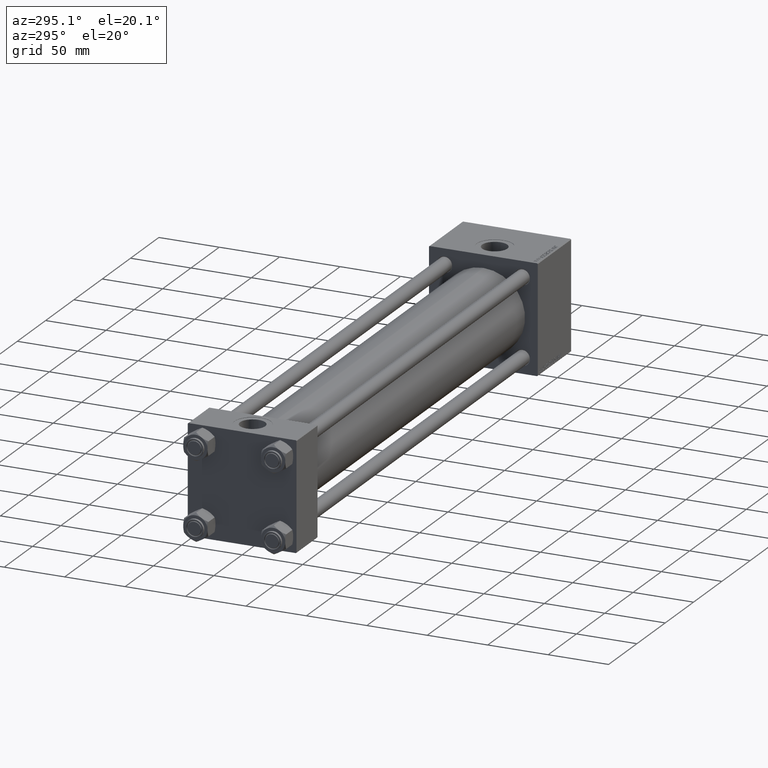
[diagram: clean part render]
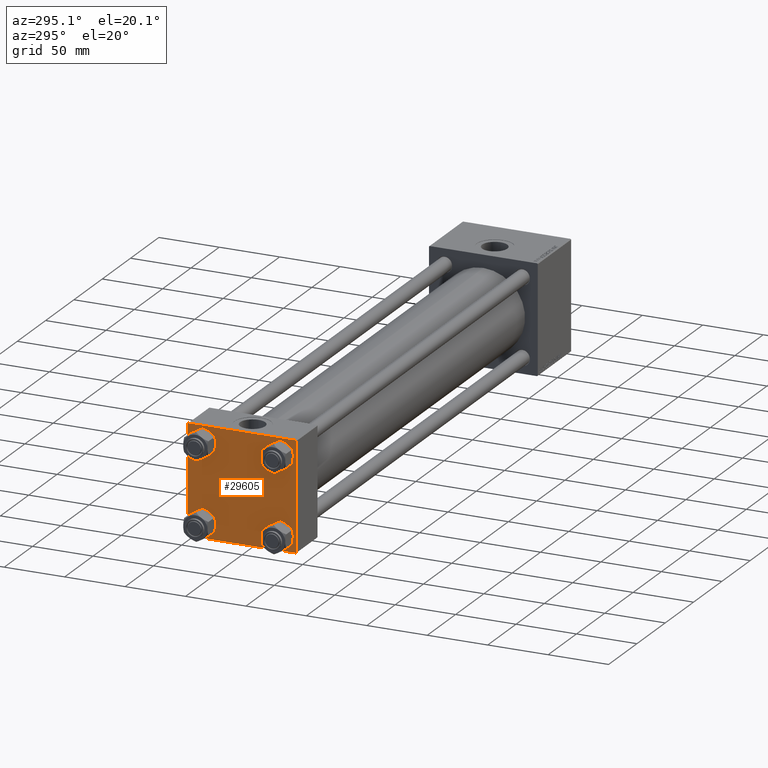
[diagram: same view with one face highlighted and labeled with its STEP entity id]
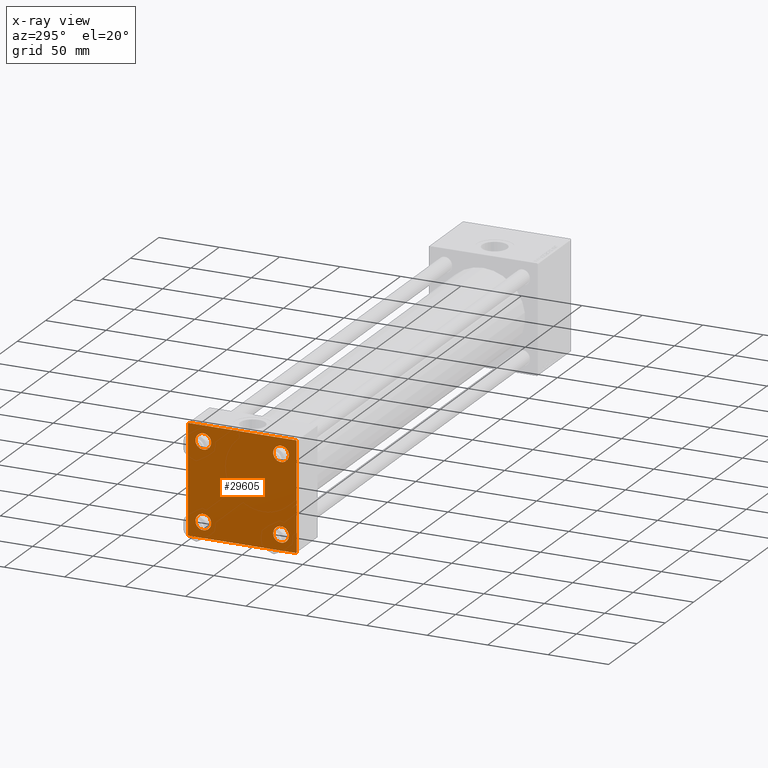
[diagram: x-ray of the same camera — body ghosted, the highlighted face saturated]
A machine part, auxiliary view. The second image highlights one B-rep face of the part: STEP entity #29605.
The next image is the same camera in x-ray: the body ghosted, the highlighted face saturated — about 0% of this face is hidden behind the body in this view.
In plain terms, the highlighted planar face has unit normal (-1, 0, 0).
Its self-contained STEP definition (entity closure, byte-faithful):
#383 = CARTESIAN_POINT ( 'NONE',  ( 0.000000000000000000, 44.99999999999998579, -44.49999999999995737 ) ) ;
#1426 = VECTOR ( 'NONE', #19459, 1000.000000000000114 ) ;
#1453 = ORIENTED_EDGE ( 'NONE', *, *, #9742, .T. ) ;
#1647 = CARTESIAN_POINT ( 'NONE',  ( 0.000000000000000000, 32.14999999999999147, 32.15000000000000568 ) ) ;
#2233 = DIRECTION ( 'NONE',  ( 1.000000000000000000, -0.000000000000000000, 0.000000000000000000 ) ) ;
#2516 = VECTOR ( 'NONE', #11775, 1000.000000000000000 ) ;
#2547 = ORIENTED_EDGE ( 'NONE', *, *, #25420, .F. ) ;
#2628 = CARTESIAN_POINT ( 'NONE',  ( 0.000000000000000000, 32.14999999999999147, -32.15000000000000568 ) ) ;
#3017 = CARTESIAN_POINT ( 'NONE',  ( 0.000000000000000000, 44.99999999999998579, 45.00000000000001421 ) ) ;
#3289 = CIRCLE ( 'NONE', #14646, 6.500000000000019540 ) ;
#3768 = CIRCLE ( 'NONE', #23271, 6.499999999999977796 ) ;
#3987 = LINE ( 'NONE', #7824, #46936 ) ;
#4123 = DIRECTION ( 'NONE',  ( 0.000000000000000000, 0.000000000000000000, 1.000000000000000000 ) ) ;
#4139 = DIRECTION ( 'NONE',  ( 1.000000000000000000, -0.000000000000000000, 0.000000000000000000 ) ) ;
#5094 = ORIENTED_EDGE ( 'NONE', *, *, #47189, .T. ) ;
#5944 = CARTESIAN_POINT ( 'NONE',  ( 0.000000000000000000, 32.14999999999999147, -38.64999999999998437 ) ) ;
#6269 = CARTESIAN_POINT ( 'NONE',  ( 0.000000000000000000, 44.99999999999998579, 44.50000000000001421 ) ) ;
#6338 = CARTESIAN_POINT ( 'NONE',  ( 0.000000000000000000, -44.49999999999995737, -45.00000000000000000 ) ) ;
#6569 = CARTESIAN_POINT ( 'NONE',  ( 0.000000000000000000, 32.14999999999999147, 38.64999999999999147 ) ) ;
#7234 = EDGE_CURVE ( 'NONE', #15630, #17854, #26183, .T. ) ;
#7758 = CIRCLE ( 'NONE', #18311, 6.499999999999977796 ) ;
#7824 = CARTESIAN_POINT ( 'NONE',  ( 0.000000000000000000, -45.00000000000000711, 45.00000000000000000 ) ) ;
#7961 = EDGE_CURVE ( 'NONE', #18702, #36331, #3289, .T. ) ;
#7983 = LINE ( 'NONE', #19669, #25886 ) ;
#8150 = LINE ( 'NONE', #27726, #26615 ) ;
#8277 = DIRECTION ( 'NONE',  ( 1.000000000000000000, -0.000000000000000000, 0.000000000000000000 ) ) ;
#9023 = CARTESIAN_POINT ( 'NONE',  ( 0.000000000000000000, 32.14999999999999147, -32.15000000000000568 ) ) ;
#9742 = EDGE_CURVE ( 'NONE', #36013, #31574, #46652, .T. ) ;
#10010 = DIRECTION ( 'NONE',  ( 1.000000000000000000, -0.000000000000000000, 0.000000000000000000 ) ) ;
#10657 = FACE_BOUND ( 'NONE', #46618, .T. ) ;
#10776 = AXIS2_PLACEMENT_3D ( 'NONE', #25569, #41355, #30141 ) ;
#10836 = ORIENTED_EDGE ( 'NONE', *, *, #29388, .T. ) ;
#11241 = EDGE_CURVE ( 'NONE', #42488, #47500, #40766, .T. ) ;
#11293 = CARTESIAN_POINT ( 'NONE',  ( 0.000000000000000000, -32.14999999999997726, 32.15000000000001279 ) ) ;
#11404 = DIRECTION ( 'NONE',  ( -1.000000000000000000, 0.000000000000000000, -0.000000000000000000 ) ) ;
#11775 = DIRECTION ( 'NONE',  ( 0.000000000000000000, -1.000000000000000000, -1.541976423090495633E-16 ) ) ;
#12609 = DIRECTION ( 'NONE',  ( 0.000000000000000000, 0.000000000000000000, 1.000000000000000000 ) ) ;
#12781 = EDGE_CURVE ( 'NONE', #25835, #44860, #22126, .T. ) ;
#13597 = DIRECTION ( 'NONE',  ( 1.000000000000000000, -0.000000000000000000, 0.000000000000000000 ) ) ;
#14646 = AXIS2_PLACEMENT_3D ( 'NONE', #11293, #4139, #15352 ) ;
#14687 = VERTEX_POINT ( 'NONE', #383 ) ;
#15286 = AXIS2_PLACEMENT_3D ( 'NONE', #49104, #11404, #38379 ) ;
#15352 = DIRECTION ( 'NONE',  ( 0.000000000000000000, 0.000000000000000000, 1.000000000000000000 ) ) ;
#15630 = VERTEX_POINT ( 'NONE', #23557 ) ;
#17257 = AXIS2_PLACEMENT_3D ( 'NONE', #1647, #13597, #12609 ) ;
#17537 = VERTEX_POINT ( 'NONE', #40331 ) ;
#17854 = VERTEX_POINT ( 'NONE', #50200 ) ;
#18155 = CARTESIAN_POINT ( 'NONE',  ( 0.000000000000000000, -45.00000000000000000, -44.49999999999995737 ) ) ;
#18311 = AXIS2_PLACEMENT_3D ( 'NONE', #31098, #38985, #4123 ) ;
#18702 = VERTEX_POINT ( 'NONE', #42802 ) ;
#19459 = DIRECTION ( 'NONE',  ( 0.000000000000000000, -0.7071067811865474617, 0.7071067811865474617 ) ) ;
#19574 = CARTESIAN_POINT ( 'NONE',  ( 0.000000000000000000, 44.74999999999999289, 44.74999999999999289 ) ) ;
#19669 = CARTESIAN_POINT ( 'NONE',  ( 0.000000000000000000, 44.99999999999998579, 45.00000000000001421 ) ) ;
#20101 = EDGE_LOOP ( 'NONE', ( #46577, #29387 ) ) ;
#20114 = EDGE_LOOP ( 'NONE', ( #44231, #10836, #1453, #45766, #2547, #5094, #31500, #20762 ) ) ;
#20203 = CARTESIAN_POINT ( 'NONE',  ( 0.000000000000000000, -44.74999999999998579, -44.74999999999998579 ) ) ;
#20424 = DIRECTION ( 'NONE',  ( 0.000000000000000000, 0.000000000000000000, -1.000000000000000000 ) ) ;
#20631 = ORIENTED_EDGE ( 'NONE', *, *, #31016, .T. ) ;
#20762 = ORIENTED_EDGE ( 'NONE', *, *, #28523, .T. ) ;
#21283 = DIRECTION ( 'NONE',  ( -0.000000000000000000, 0.7071067811865425767, 0.7071067811865524577 ) ) ;
#22126 = CIRCLE ( 'NONE', #10776, 6.499999999999977796 ) ;
#22716 = DIRECTION ( 'NONE',  ( 0.000000000000000000, 0.000000000000000000, 1.000000000000000000 ) ) ;
#22848 = EDGE_LOOP ( 'NONE', ( #43030, #26849 ) ) ;
#22940 = VECTOR ( 'NONE', #21283, 1000.000000000000114 ) ;
#23078 = EDGE_CURVE ( 'NONE', #45549, #28693, #7758, .T. ) ;
#23271 = AXIS2_PLACEMENT_3D ( 'NONE', #2628, #10010, #22716 ) ;
#23329 = DIRECTION ( 'NONE',  ( 0.000000000000000000, 7.709882115452476934E-17, -1.000000000000000000 ) ) ;
#23531 = LINE ( 'NONE', #20203, #1426 ) ;
#23557 = CARTESIAN_POINT ( 'NONE',  ( 0.000000000000000000, 44.49999999999998579, 45.00000000000001421 ) ) ;
#23888 = CARTESIAN_POINT ( 'NONE',  ( 0.000000000000000000, 44.49999999999998579, -44.99999999999998579 ) ) ;
#23931 = ORIENTED_EDGE ( 'NONE', *, *, #7961, .T. ) ;
#24155 = DIRECTION ( 'NONE',  ( -0.000000000000000000, -0.7071067811865474617, -0.7071067811865474617 ) ) ;
#25420 = EDGE_CURVE ( 'NONE', #17537, #43556, #3987, .T. ) ;
#25569 = CARTESIAN_POINT ( 'NONE',  ( 0.000000000000000000, -32.14999999999997726, -32.15000000000001279 ) ) ;
#25835 = VERTEX_POINT ( 'NONE', #29771 ) ;
#25886 = VECTOR ( 'NONE', #20424, 1000.000000000000000 ) ;
#25912 = FACE_OUTER_BOUND ( 'NONE', #20114, .T. ) ;
#26183 = LINE ( 'NONE', #3017, #34945 ) ;
#26184 = EDGE_CURVE ( 'NONE', #44860, #25835, #42075, .T. ) ;
#26615 = VECTOR ( 'NONE', #24155, 1000.000000000000114 ) ;
#26618 = DIRECTION ( 'NONE',  ( 0.000000000000000000, 0.000000000000000000, 1.000000000000000000 ) ) ;
#26849 = ORIENTED_EDGE ( 'NONE', *, *, #23078, .T. ) ;
#26970 = EDGE_CURVE ( 'NONE', #47500, #42488, #3768, .T. ) ;
#27726 = CARTESIAN_POINT ( 'NONE',  ( 0.000000000000000000, 44.74999999999998579, -44.74999999999998579 ) ) ;
#28239 = VECTOR ( 'NONE', #31529, 1000.000000000000114 ) ;
#28523 = EDGE_CURVE ( 'NONE', #15630, #30835, #43503, .T. ) ;
#28693 = VERTEX_POINT ( 'NONE', #6569 ) ;
#29387 = ORIENTED_EDGE ( 'NONE', *, *, #11241, .T. ) ;
#29388 = EDGE_CURVE ( 'NONE', #14687, #36013, #8150, .T. ) ;
#29605 = ADVANCED_FACE ( 'NONE', ( #10657, #30726, #45525, #49359, #25912 ), #45263, .T. ) ;
#29771 = CARTESIAN_POINT ( 'NONE',  ( 0.000000000000000000, -32.14999999999997726, -25.65000000000003411 ) ) ;
#29971 = EDGE_CURVE ( 'NONE', #31574, #43556, #23531, .T. ) ;
#30141 = DIRECTION ( 'NONE',  ( 0.000000000000000000, 0.000000000000000000, 1.000000000000000000 ) ) ;
#30726 = FACE_BOUND ( 'NONE', #39721, .T. ) ;
#30835 = VERTEX_POINT ( 'NONE', #6269 ) ;
#31016 = EDGE_CURVE ( 'NONE', #36331, #18702, #41327, .T. ) ;
#31098 = CARTESIAN_POINT ( 'NONE',  ( 0.000000000000000000, 32.14999999999999147, 32.15000000000000568 ) ) ;
#31500 = ORIENTED_EDGE ( 'NONE', *, *, #7234, .F. ) ;
#31529 = DIRECTION ( 'NONE',  ( 0.000000000000000000, 0.7071067811865474617, -0.7071067811865474617 ) ) ;
#31574 = VERTEX_POINT ( 'NONE', #6338 ) ;
#32160 = CARTESIAN_POINT ( 'NONE',  ( 0.000000000000000000, 32.14999999999999147, 25.65000000000002700 ) ) ;
#32301 = EDGE_CURVE ( 'NONE', #30835, #14687, #7983, .T. ) ;
#33601 = CARTESIAN_POINT ( 'NONE',  ( 0.000000000000000000, -32.14999999999997726, -38.64999999999999147 ) ) ;
#33666 = CARTESIAN_POINT ( 'NONE',  ( 0.000000000000000000, 32.14999999999999147, -25.65000000000002700 ) ) ;
#33991 = DIRECTION ( 'NONE',  ( 1.000000000000000000, -0.000000000000000000, 0.000000000000000000 ) ) ;
#34641 = ORIENTED_EDGE ( 'NONE', *, *, #12781, .T. ) ;
#34945 = VECTOR ( 'NONE', #38639, 1000.000000000000000 ) ;
#36013 = VERTEX_POINT ( 'NONE', #23888 ) ;
#36331 = VERTEX_POINT ( 'NONE', #47262 ) ;
#38379 = DIRECTION ( 'NONE',  ( -0.000000000000000000, 0.000000000000000000, 1.000000000000000000 ) ) ;
#38639 = DIRECTION ( 'NONE',  ( 0.000000000000000000, -1.000000000000000000, -1.541976423090495387E-16 ) ) ;
#38855 = AXIS2_PLACEMENT_3D ( 'NONE', #45985, #33991, #26618 ) ;
#38985 = DIRECTION ( 'NONE',  ( 1.000000000000000000, -0.000000000000000000, 0.000000000000000000 ) ) ;
#39206 = CIRCLE ( 'NONE', #17257, 6.499999999999977796 ) ;
#39313 = DIRECTION ( 'NONE',  ( 0.000000000000000000, 0.000000000000000000, 1.000000000000000000 ) ) ;
#39721 = EDGE_LOOP ( 'NONE', ( #34641, #48872 ) ) ;
#40173 = CARTESIAN_POINT ( 'NONE',  ( 0.000000000000000000, -32.14999999999997726, -32.15000000000001279 ) ) ;
#40331 = CARTESIAN_POINT ( 'NONE',  ( 0.000000000000000000, -45.00000000000000711, 44.49999999999997158 ) ) ;
#40671 = DIRECTION ( 'NONE',  ( 0.000000000000000000, 0.000000000000000000, 1.000000000000000000 ) ) ;
#40766 = CIRCLE ( 'NONE', #44833, 6.499999999999977796 ) ;
#41327 = CIRCLE ( 'NONE', #38855, 6.500000000000019540 ) ;
#41355 = DIRECTION ( 'NONE',  ( 1.000000000000000000, -0.000000000000000000, 0.000000000000000000 ) ) ;
#41666 = CARTESIAN_POINT ( 'NONE',  ( -0.000000000000000000, -44.75000000000029843, 44.74999999999967315 ) ) ;
#42075 = CIRCLE ( 'NONE', #47741, 6.499999999999977796 ) ;
#42488 = VERTEX_POINT ( 'NONE', #5944 ) ;
#42802 = CARTESIAN_POINT ( 'NONE',  ( 0.000000000000000000, -32.14999999999997726, 38.65000000000003411 ) ) ;
#43030 = ORIENTED_EDGE ( 'NONE', *, *, #44677, .T. ) ;
#43320 = CARTESIAN_POINT ( 'NONE',  ( 0.000000000000000000, 44.99999999999998579, -44.99999999999998579 ) ) ;
#43503 = LINE ( 'NONE', #19574, #28239 ) ;
#43556 = VERTEX_POINT ( 'NONE', #18155 ) ;
#44231 = ORIENTED_EDGE ( 'NONE', *, *, #32301, .T. ) ;
#44677 = EDGE_CURVE ( 'NONE', #28693, #45549, #39206, .T. ) ;
#44833 = AXIS2_PLACEMENT_3D ( 'NONE', #9023, #8277, #39313 ) ;
#44860 = VERTEX_POINT ( 'NONE', #33601 ) ;
#45263 = PLANE ( 'NONE',  #15286 ) ;
#45525 = FACE_BOUND ( 'NONE', #20101, .T. ) ;
#45549 = VERTEX_POINT ( 'NONE', #32160 ) ;
#45766 = ORIENTED_EDGE ( 'NONE', *, *, #29971, .T. ) ;
#45985 = CARTESIAN_POINT ( 'NONE',  ( 0.000000000000000000, -32.14999999999997726, 32.15000000000001279 ) ) ;
#46577 = ORIENTED_EDGE ( 'NONE', *, *, #26970, .T. ) ;
#46618 = EDGE_LOOP ( 'NONE', ( #23931, #20631 ) ) ;
#46652 = LINE ( 'NONE', #43320, #2516 ) ;
#46936 = VECTOR ( 'NONE', #23329, 1000.000000000000000 ) ;
#47189 = EDGE_CURVE ( 'NONE', #17537, #17854, #48544, .T. ) ;
#47262 = CARTESIAN_POINT ( 'NONE',  ( 0.000000000000000000, -32.14999999999997726, 25.64999999999999147 ) ) ;
#47500 = VERTEX_POINT ( 'NONE', #33666 ) ;
#47741 = AXIS2_PLACEMENT_3D ( 'NONE', #40173, #2233, #40671 ) ;
#48544 = LINE ( 'NONE', #41666, #22940 ) ;
#48872 = ORIENTED_EDGE ( 'NONE', *, *, #26184, .T. ) ;
#49104 = CARTESIAN_POINT ( 'NONE',  ( 0.000000000000000000, 0.000000000000000000, 0.000000000000000000 ) ) ;
#49359 = FACE_BOUND ( 'NONE', #22848, .T. ) ;
#50200 = CARTESIAN_POINT ( 'NONE',  ( 0.000000000000000000, -44.49999999999995737, 45.00000000000000000 ) ) ;